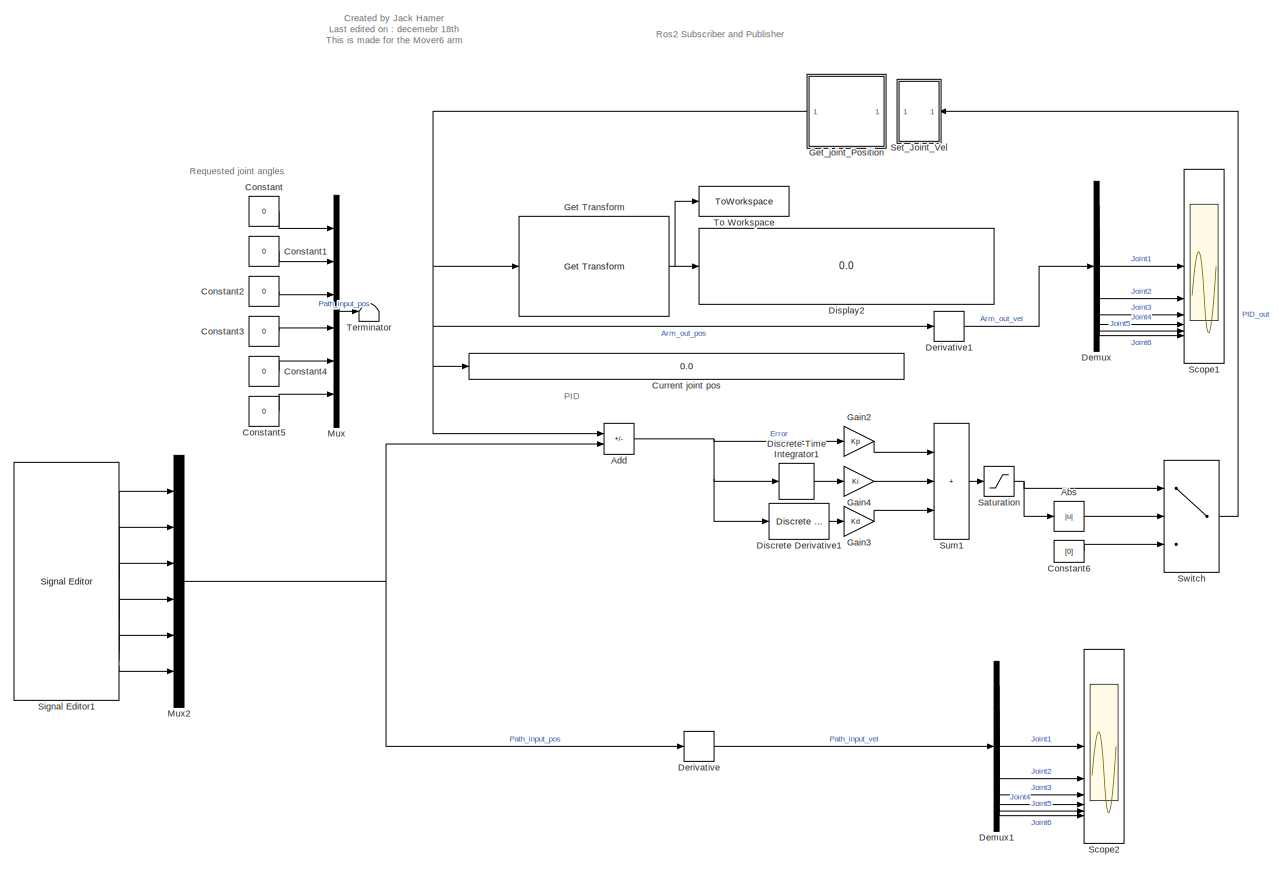
[diagram: root canvas - part 1/2, right side, full height]
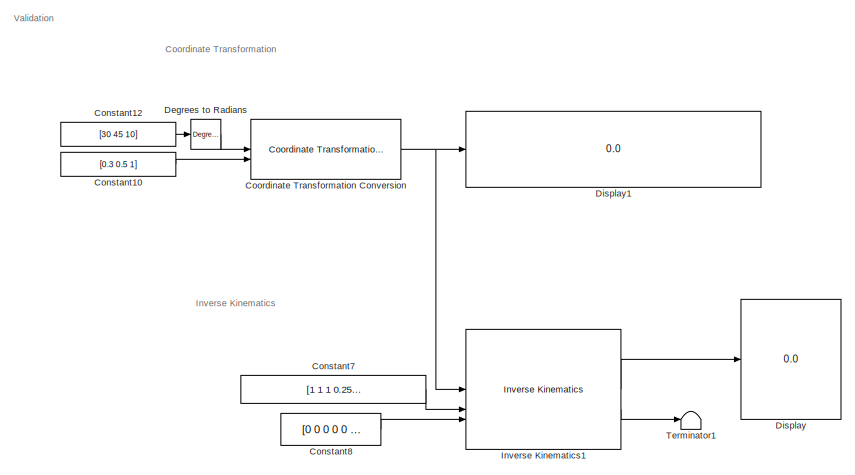
[diagram: root canvas - part 2/2, middle left region]
MODEL slx_d1d6d552360e
KIND model
CONFIG AbsTol = auto
CONFIG EnableMultiTasking = off
CONFIG FixedStep = auto
CONFIG MaxStep = auto
CONFIG MinStep = auto
CONFIG RelTol = 1e-3
CONFIG SampleTimeConstraint = Unconstrained
CONFIG SolverName = FixedStepAuto
CONFIG StartTime = 0.0
CONFIG StopTime = inf
WORKSPACE source: mxarray member
WORKSPACE SL_ROS_VariableLengthArrays_MaxSizes: object (value not decoded)
BLOCK [Abs] Abs
  SaturateOnIntegerOverflow = off
BLOCK [Sum] Add
  IconShape = rectangular
  Inputs = -+
BLOCK [Constant] Constant
  Value = 0
BLOCK [Constant] Constant1
  Value = 0
BLOCK [Constant] Constant10
  Value = [0.3 0.5 1]
BLOCK [Constant] Constant12
  Value = [30 45 10]
BLOCK [Constant] Constant2
  Value = 0
BLOCK [Constant] Constant3
  Value = 0
BLOCK [Constant] Constant4
  Value = 0
BLOCK [Constant] Constant5
  Value = 0
BLOCK [Constant] Constant6
  SampleTime = Sample_time
  Value = [0]
BLOCK [Constant] Constant7
  Value = [1 1 1 0.25 0.25 0.25]
BLOCK [Constant] Constant8
  Value = [0 0 0 0 0 0]
BLOCK [Reference] Coordinate Transformation Conversion  REF=robotcorelib/Coordinate Transformation Conversion
  LibrarySourceBlock = robotutilslib/Coordinate Transformation Conversion
  SourceBlock = robotcorelib/Coordinate Transformation Conversion
  SourceType = robotics.slcore.internal.block.CoordinateTransformationConversion
BLOCK [Display] Current joint pos
  Decimation = 1
BLOCK [Reference] Degrees to Radians  REF=simulink_extras/Transformations/Degrees to
Radians
  SourceBlock = simulink_extras/Transformations/Degrees to\nRadians
  SourceType = DegreesToRadians
BLOCK [Demux] Demux
  Outputs = 6
BLOCK [Demux] Demux1
  Outputs = 6
BLOCK [Derivative] Derivative
BLOCK [Derivative] Derivative1
BLOCK [Reference] Discrete Derivative1  REF=simulink/Discrete/Discrete Derivative
  Commented = on
  SourceBlock = simulink/Discrete/Discrete Derivative
  SourceType = Discrete Derivative
BLOCK [DiscreteIntegrator] Discrete-Time Integrator1
  ICPrevOutput = DiscIntNeverNeededParam
  ICPrevScaledInput = DiscIntNeverNeededParam
  InitialConditionSetting = Auto
  SampleTime = -1
BLOCK [Display] Display
  Decimation = 1
BLOCK [Display] Display1
  Decimation = 1
BLOCK [Display] Display2
  Decimation = 1
BLOCK [Gain] Gain2
  Gain = Kp
BLOCK [Gain] Gain3
  Commented = on
  Gain = Kd
BLOCK [Gain] Gain4
  Gain = Ki
BLOCK [Reference] Get Transform  REF=robotmaniplib/Get Transform
  SourceBlock = robotmaniplib/Get Transform
  SourceType = Get Transform
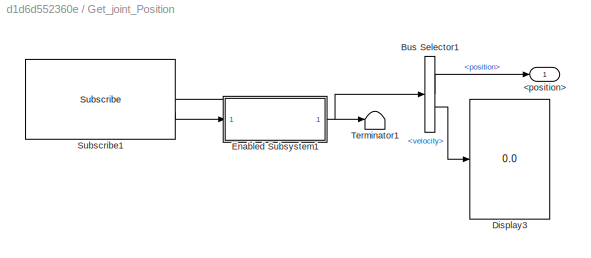
BLOCK [SubSystem] Get_joint_Position
BLOCK [Outport] Get_joint_Position/<position>
BLOCK [BusSelector] Get_joint_Position/Bus Selector1
  OutputSignals = position,velocity
BLOCK [Display] Get_joint_Position/Display3
  Decimation = 1
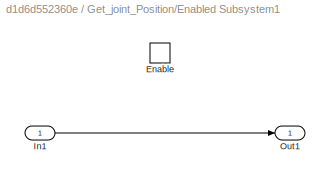
BLOCK [SubSystem] Get_joint_Position/Enabled Subsystem1
  TreatAsAtomicUnit = on
BLOCK [EnablePort] Get_joint_Position/Enabled Subsystem1/Enable
BLOCK [Inport] Get_joint_Position/Enabled Subsystem1/In1
BLOCK [Outport] Get_joint_Position/Enabled Subsystem1/Out1
BLOCK [Reference] Get_joint_Position/Subscribe1  REF=ros2lib/Subscribe  (lib defined in slx_3c1549211f48)
  SourceBlock = ros2lib/Subscribe
  SourceType = ROS2 Subscribe
BLOCK [Terminator] Get_joint_Position/Terminator1
BLOCK [Reference] Inverse Kinematics1  REF=robotmaniplib/Inverse Kinematics
  SourceBlock = robotmaniplib/Inverse Kinematics
  SourceType = Inverse Kinematics
BLOCK [Mux] Mux
  DisplayOption = bar
  Inputs = 6
BLOCK [Mux] Mux2
  DisplayOption = bar
  Inputs = 6
BLOCK [Saturate] Saturation
  LowerLimit = -2
  UpperLimit = 2
BLOCK [Scope] Scope1
  ActiveDisplayYMaximum = 3.372443564924636
  ActiveDisplayYMinimum = -3.329826235975621
  DataLoggingVariableName = ScopeData1
  Floating = off
  GraphicalSettings = {"Style":{"BackgroundColor":[0.12941176470588237,0.12941176470588237,0.12941176470588237],"AxesColor":[0.07058823529411765,0.07058823529411765,0.07058823529411765],"LabelsColor":[0.8509803921568627,0.8509803921568627,0.8509803921568627],"PreserveColors":false,"Visible":[true,true,true,true,true,true,true],"LineStyle":["-","-","-","-","-","-","-"],"LineWidth":[1.5,1.5,1.5,1.5,1.5,1.5,1.5],"BarWidth...<+2601ch>
  MultipleDisplayCache = [{"MaxYLimMag":3.372443564924636,"MaxYLimReal":3.372443564924636,"MinYLimMag":0,"MinYLimReal":-3.329826235975621,"PlotAsMagnitudePhase":false,"ShowGrid":true,"ShowLegend":false,"Title":"%<SignalLabel>","YLabel":""}]
  NumInputPorts = 6
  ScopeFrameLocation = window
  WasSavedAsWebScope = on
  WindowPosition = [480.000000,104.000000,960.000000,1065.000000,]
BLOCK [Scope] Scope2
  ActiveDisplayYMaximum = 2.2527181340884104
  ActiveDisplayYMinimum = -1.9531250848653292
  Floating = off
  GraphicalSettings = {"AxesScalingProperties":{"AlignXAxis":"Center","AlignYAxis":"Center","AutoScaleXAxisLimits":false,"AxesScaling":"Manual","AxesScalingNumUpdates":10,"ExpandOnly":true,"ScaleAxesLimitsAtStop":false,"XAxisDataRange":100,"YAxisDataRange":80},"DisplayProperties":{"ColorOrder":["auto","auto","auto","auto","auto","auto","auto","auto","auto","auto","auto","auto","auto","auto","auto","auto","auto","auto",...<+2557ch>
  MultipleDisplayCache = [{"MaxYLimMag":0.084624205764614935,"MaxYLimReal":2.2527181340884104,"MinYLimMag":0,"MinYLimReal":-1.9531250848653292,"PlotAsMagnitudePhase":false,"ShowGrid":true,"ShowLegend":false,"Title":"%<SignalLabel>","YLabel":""}]
  NumInputPorts = 6
  ScopeFrameLocation = window
  WasSavedAsWebScope = on
  WindowPosition = [480.000000,104.000000,960.000000,1065.000000,]
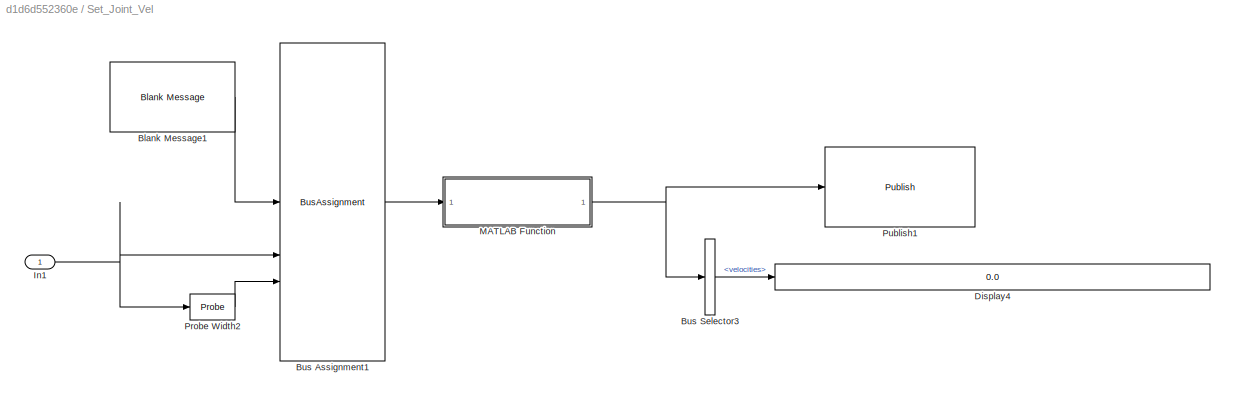
BLOCK [SubSystem] Set_Joint_Vel
BLOCK [Reference] Set_Joint_Vel/Blank Message1  REF=ros2lib/Blank Message  (lib defined in slx_3c1549211f48)
  SourceBlock = ros2lib/Blank Message
  SourceType = ROS2 Blank Message
BLOCK [BusAssignment] Set_Joint_Vel/Bus Assignment1
  AssignedSignals = velocities,velocities_SL_Info.CurrentLength
BLOCK [BusSelector] Set_Joint_Vel/Bus Selector3
  OutputSignals = velocities
BLOCK [Display] Set_Joint_Vel/Display4
  Decimation = 1
BLOCK [Inport] Set_Joint_Vel/In1
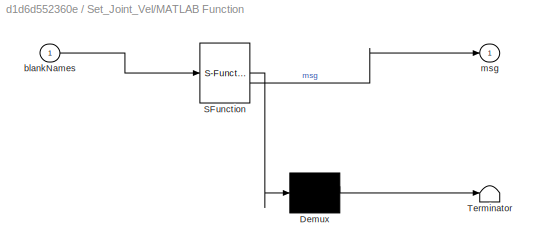
BLOCK [SubSystem] Set_Joint_Vel/MATLAB Function
  ErrorFcn = Stateflow.Translate.translate
  PermitHierarchicalResolution = ExplicitOnly
  SFBlockType = MATLAB Function
  TreatAsAtomicUnit = on
BLOCK [Demux] Set_Joint_Vel/MATLAB Function/ Demux 
  Outputs = 1
BLOCK [S-Function] Set_Joint_Vel/MATLAB Function/ SFunction 
  EnableBusSupport = off
  FunctionName = sf_sfun
  PortCounts = [1 2]
  SFcnIsStateOwnerBlock = off
  SFunctionDeploymentMode = off
  Tag = Stateflow S-Function 2
BLOCK [Terminator] Set_Joint_Vel/MATLAB Function/ Terminator 
BLOCK [Inport] Set_Joint_Vel/MATLAB Function/blankNames
BLOCK [Outport] Set_Joint_Vel/MATLAB Function/msg
BLOCK [Probe] Set_Joint_Vel/Probe Width2
  ProbeComplexSignal = off
  ProbeSampleTime = off
  ProbeWidthDataType = uint32
BLOCK [Reference] Set_Joint_Vel/Publish1  REF=ros2lib/Publish  (lib defined in slx_3c1549211f48)
  SourceBlock = ros2lib/Publish
  SourceType = ROS2 Publish
BLOCK [Reference] Signal Editor1  REF=SignalEditorBlockLib/Signal Editor
  LibrarySourceBlock = simulink/Sources/Signal Editor
  SourceBlock = SignalEditorBlockLib/Signal Editor
  SourceType = SignalEditor
  UserDataPersistent = on
BLOCK [Sum] Sum1
  IconShape = rectangular
  Inputs = +++
BLOCK [Switch] Switch
  Criteria = u2 > Threshold
  InputSameDT = off
  SaturateOnIntegerOverflow = off
  Threshold = Error_threshold
BLOCK [Terminator] Terminator
BLOCK [Terminator] Terminator1
BLOCK [ToWorkspace] To Workspace
  FixptAsFi = on
  MaxDataPoints = inf
  SampleTime = -1
  SaveFormat = Timeseries
  VariableName = simout
ANNOTATION (root): Coordinate Transformation
ANNOTATION (root): Created by Jack Hamer Last edited on : decemebr 18th This is made for the Mover6 arm
ANNOTATION (root): Inverse Kinematics
ANNOTATION (root): PID
ANNOTATION (root): Requested joint angles
ANNOTATION (root): Ros2 Subscriber and Publisher
ANNOTATION (root): Validation
LINE Abs:1 -> Switch:2
NET Add:1 -> Discrete Derivative1:1, Discrete-Time Integrator1:1, Gain2:1
LINE Constant10:1 -> Coordinate Transformation Conversion:2
LINE Constant12:1 -> Degrees to Radians:1
LINE Constant1:1 -> Mux:2
LINE Constant2:1 -> Mux:3
LINE Constant3:1 -> Mux:4
LINE Constant4:1 -> Mux:5
LINE Constant5:1 -> Mux:6
LINE Constant6:1 -> Switch:3
LINE Constant7:1 -> Inverse Kinematics1:2
LINE Constant8:1 -> Inverse Kinematics1:3
LINE Constant:1 -> Mux:1
NET Coordinate Transformation Conversion:1 -> Display1:1, Inverse Kinematics1:1
LINE Degrees to Radians:1 -> Coordinate Transformation Conversion:1
LINE Demux1:1 -> Scope2:1
LINE Demux1:2 -> Scope2:2
LINE Demux1:3 -> Scope2:3
LINE Demux1:4 -> Scope2:4
LINE Demux1:5 -> Scope2:5
LINE Demux1:6 -> Scope2:6
LINE Demux:1 -> Scope1:1
LINE Demux:2 -> Scope1:2
LINE Demux:3 -> Scope1:3
LINE Demux:4 -> Scope1:4
LINE Demux:5 -> Scope1:5
LINE Demux:6 -> Scope1:6
LINE Derivative1:1 -> Demux:1
LINE Derivative:1 -> Demux1:1
LINE Discrete Derivative1:1 -> Gain3:1
LINE Discrete-Time Integrator1:1 -> Gain4:1
LINE Gain2:1 -> Sum1:1
LINE Gain3:1 -> Sum1:3
LINE Gain4:1 -> Sum1:2
NET Get Transform:1 -> Display2:1, To Workspace:1
LINE Get_joint_Position/Bus Selector1:1 -> Get_joint_Position/<position>:1
LINE Get_joint_Position/Bus Selector1:2 -> Get_joint_Position/Display3:1
LINE Get_joint_Position/Enabled Subsystem1/In1:1 -> Get_joint_Position/Enabled Subsystem1/Out1:1
NET Get_joint_Position/Enabled Subsystem1:1 -> Get_joint_Position/Bus Selector1:1, Get_joint_Position/Terminator1:1
LINE Get_joint_Position/Subscribe1:1 -> Get_joint_Position/Enabled Subsystem1:enable
LINE Get_joint_Position/Subscribe1:2 -> Get_joint_Position/Enabled Subsystem1:1
NET Get_joint_Position:1 -> Add:1, Current joint pos:1, Derivative1:1, Get Transform:1
LINE Inverse Kinematics1:1 -> Display:1
LINE Inverse Kinematics1:2 -> Terminator1:1
NET Mux2:1 -> Add:2, Derivative:1
LINE Mux:1 -> Terminator:1
NET Saturation:1 -> Abs:1, Switch:1
LINE Set_Joint_Vel/Blank Message1:1 -> Set_Joint_Vel/Bus Assignment1:1
LINE Set_Joint_Vel/Bus Assignment1:1 -> Set_Joint_Vel/MATLAB Function:1
LINE Set_Joint_Vel/Bus Selector3:1 -> Set_Joint_Vel/Display4:1
NET Set_Joint_Vel/In1:1 -> Set_Joint_Vel/Bus Assignment1:2, Set_Joint_Vel/Probe Width2:1
NET Set_Joint_Vel/MATLAB Function:1 -> Set_Joint_Vel/Bus Selector3:1, Set_Joint_Vel/Publish1:1
LINE Set_Joint_Vel/Probe Width2:1 -> Set_Joint_Vel/Bus Assignment1:3
LINE Signal Editor1:1 -> Mux2:1
LINE Signal Editor1:2 -> Mux2:2
LINE Signal Editor1:3 -> Mux2:3
LINE Signal Editor1:4 -> Mux2:4
LINE Signal Editor1:5 -> Mux2:5
LINE Signal Editor1:6 -> Mux2:6
LINE Sum1:1 -> Saturation:1
LINE Switch:1 -> Set_Joint_Vel:1
note: NET lines group one-source signal fan-out (src -> all destinations, sorted); 1:1 wires keep LINE
CHART Set_Joint_Vel/MATLAB Function states=1 transitions=1
  STATE_LABEL 'eML_blk_kernel()'
  STATE_LABEL "SCRIPT:\nfunction msg = addsnamestobus(blankNames)\n%Very heavily edited from The matworks string ros2 assigment script\n%https://uk.mathworks.com/help/ros/ug/work-with-ros2-messages-in-simulink.html\n% specifically the working with string assignment example\n\nstrArraytoinput={'joint1','joint2','joint3','joint4','joint5','joint6'};\n\nmsg=blankNames;\n\nlenofarray=length(strArraytoinput);\n\nmsg.joint_names_...<+259ch>"
CHART  states=0 transitions=0
